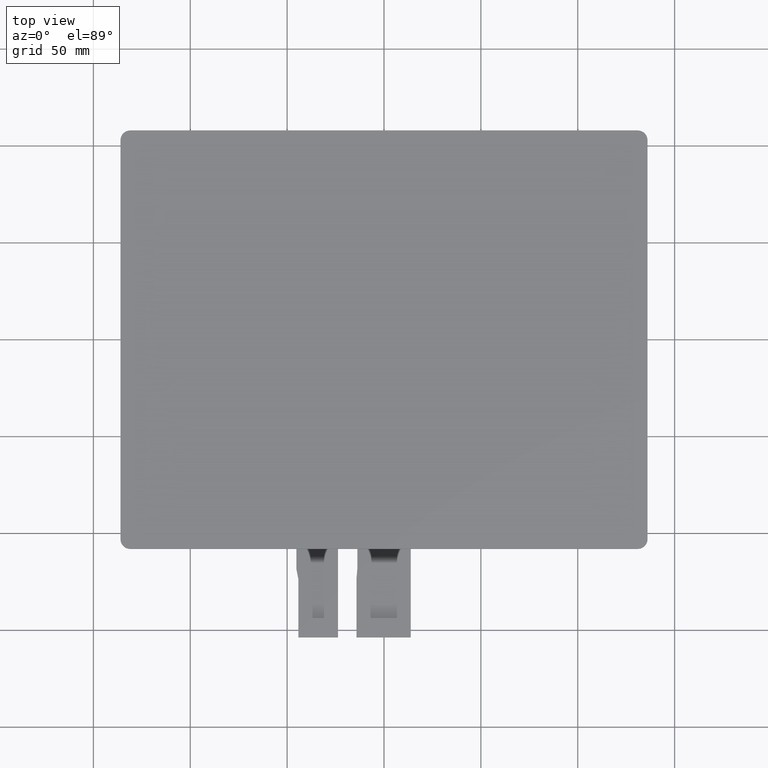
[diagram: clean part render]
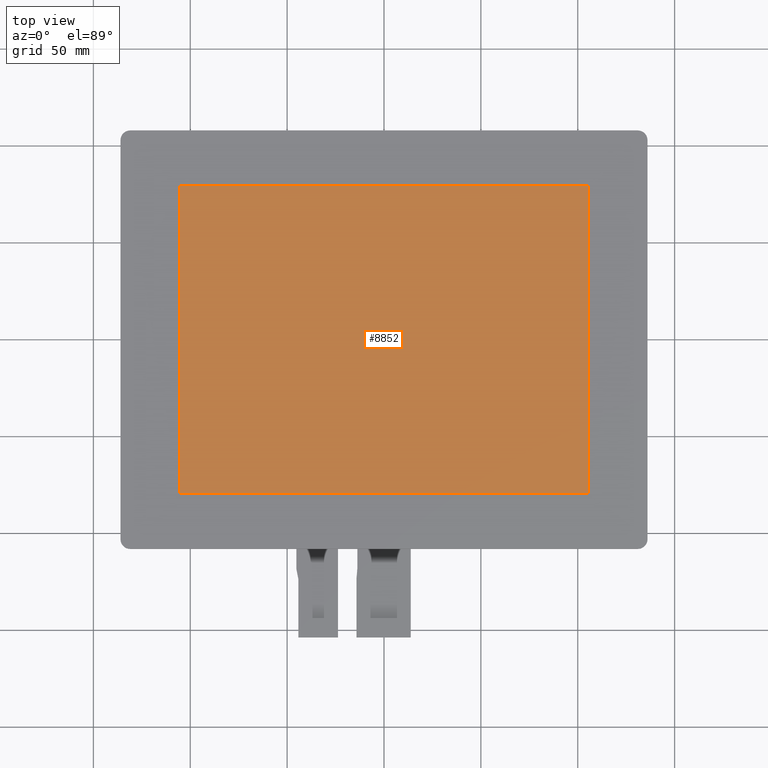
[diagram: same view with one face highlighted and labeled with its STEP entity id]
A machine part, top view. The second image highlights one B-rep face of the part: STEP entity #8852.
In plain terms, the highlighted planar face has unit normal (0, 0, 1).
Its self-contained STEP definition (entity closure, byte-faithful):
#485=FACE_OUTER_BOUND('',#912,.T.);
#912=EDGE_LOOP('',(#7981,#7982,#7983,#7984));
#940=LINE('',#11488,#2185);
#941=LINE('',#11490,#2186);
#942=LINE('',#11492,#2187);
#943=LINE('',#11493,#2188);
#2185=VECTOR('',#9365,10.);
#2186=VECTOR('',#9366,10.);
#2187=VECTOR('',#9367,10.);
#2188=VECTOR('',#9368,10.);
#3429=VERTEX_POINT('',#11486);
#3430=VERTEX_POINT('',#11487);
#3431=VERTEX_POINT('',#11489);
#3432=VERTEX_POINT('',#11491);
#4273=EDGE_CURVE('',#3429,#3430,#940,.T.);
#4274=EDGE_CURVE('',#3431,#3429,#941,.T.);
#4275=EDGE_CURVE('',#3432,#3431,#942,.T.);
#4276=EDGE_CURVE('',#3430,#3432,#943,.T.);
#7981=ORIENTED_EDGE('',*,*,#4273,.T.);
#7982=ORIENTED_EDGE('',*,*,#4276,.T.);
#7983=ORIENTED_EDGE('',*,*,#4275,.T.);
#7984=ORIENTED_EDGE('',*,*,#4274,.T.);
#8427=PLANE('',#9309);
#8852=ADVANCED_FACE('',(#485),#8427,.T.);
#9309=AXIS2_PLACEMENT_3D('',#13933,#11412,#11413);
#9365=DIRECTION('',(-4.48574959444508E-16,1.,0.));
#9366=DIRECTION('',(1.,1.6821560979169E-16,0.));
#9367=DIRECTION('',(3.36431219583381E-16,-1.,0.));
#9368=DIRECTION('',(-1.,-5.88754634270916E-16,0.));
#11412=DIRECTION('center_axis',(0.,0.,1.));
#11413=DIRECTION('ref_axis',(1.,0.,0.));
#11486=CARTESIAN_POINT('',(105.6,-79.1999999999999,1.8));
#11487=CARTESIAN_POINT('',(105.6,79.2000000000001,1.8));
#11488=CARTESIAN_POINT('',(105.6,-39.6499999999999,1.8));
#11489=CARTESIAN_POINT('',(-105.6,-79.2,1.8));
#11490=CARTESIAN_POINT('',(-52.7999999999999,-79.2,1.8));
#11491=CARTESIAN_POINT('',(-105.6,79.2,1.8));
#11492=CARTESIAN_POINT('',(-105.6,39.55,1.8));
#11493=CARTESIAN_POINT('',(52.8,79.2000000000001,1.8));
#13933=CARTESIAN_POINT('Origin',(5.32907051820075E-14,-0.0999999999999623,
1.8));